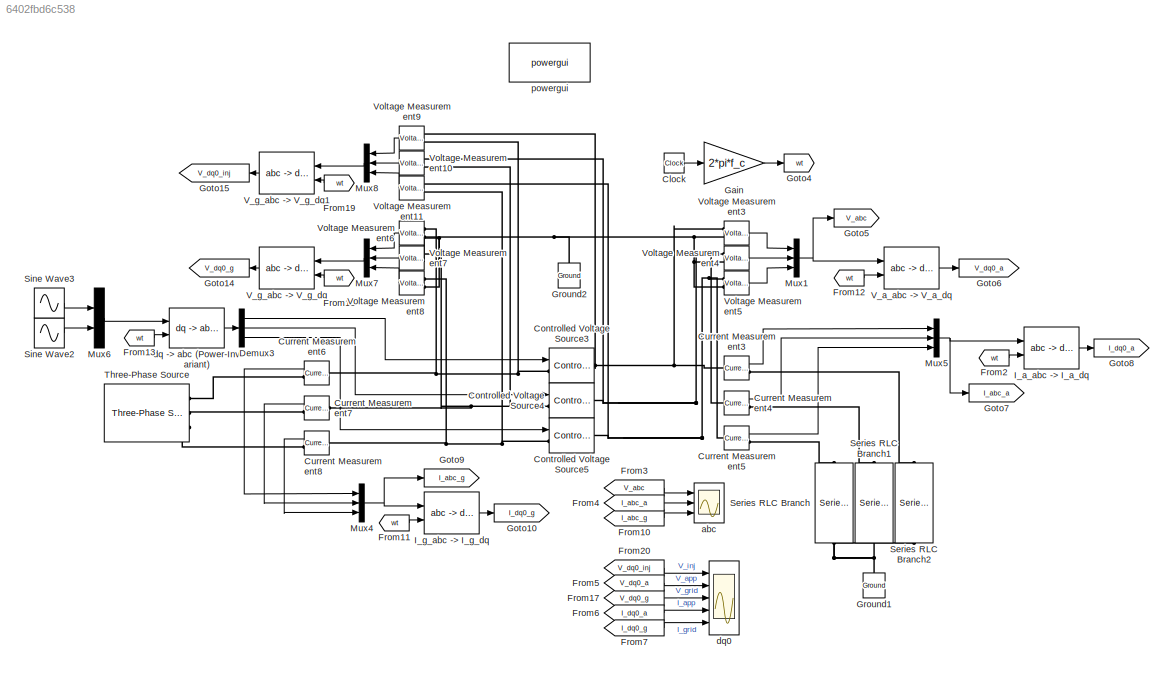
MODEL slx_6402fbd6c538
KIND model
CONFIG AbsTol = auto
CONFIG EnableMultiTasking = off
CONFIG FixedStep = tStep
CONFIG MaxStep = auto
CONFIG MinStep = auto
CONFIG RelTol = 1e-3
CONFIG SampleTimeConstraint = Unconstrained
CONFIG SolverName = FixedStepAuto
CONFIG StartTime = 0.0
CONFIG StopTime = tStop
BLOCK [Clock] Clock
BLOCK [Reference] Controlled Voltage Source3  REF=powerlib/Electrical
Sources/Controlled Voltage Source
  Ports = [1, 0, 0, 0, 0, 1, 1]
  SourceBlock = powerlib/Electrical\nSources/Controlled Voltage Source
  SourceProductBaseCode = PS
  SourceType = Controlled Voltage Source
BLOCK [Reference] Controlled Voltage Source4  REF=powerlib/Electrical
Sources/Controlled Voltage Source
  Ports = [1, 0, 0, 0, 0, 1, 1]
  SourceBlock = powerlib/Electrical\nSources/Controlled Voltage Source
  SourceProductBaseCode = PS
  SourceType = Controlled Voltage Source
BLOCK [Reference] Controlled Voltage Source5  REF=powerlib/Electrical
Sources/Controlled Voltage Source
  Ports = [1, 0, 0, 0, 0, 1, 1]
  SourceBlock = powerlib/Electrical\nSources/Controlled Voltage Source
  SourceProductBaseCode = PS
  SourceType = Controlled Voltage Source
BLOCK [Reference] Current Measurement3  REF=powerlib/Measurements/Current Measurement
  Ports = [0, 1, 0, 0, 0, 1, 1]
  SourceBlock = powerlib/Measurements/Current Measurement
  SourceProductBaseCode = PS
  SourceType = Current Measurement
  UserDataPersistent = on
BLOCK [Reference] Current Measurement4  REF=powerlib/Measurements/Current Measurement
  Ports = [0, 1, 0, 0, 0, 1, 1]
  SourceBlock = powerlib/Measurements/Current Measurement
  SourceProductBaseCode = PS
  SourceType = Current Measurement
  UserDataPersistent = on
BLOCK [Reference] Current Measurement5  REF=powerlib/Measurements/Current Measurement
  Ports = [0, 1, 0, 0, 0, 1, 1]
  SourceBlock = powerlib/Measurements/Current Measurement
  SourceProductBaseCode = PS
  SourceType = Current Measurement
  UserDataPersistent = on
BLOCK [Reference] Current Measurement6  REF=powerlib/Measurements/Current Measurement
  Ports = [0, 1, 0, 0, 0, 1, 1]
  SourceBlock = powerlib/Measurements/Current Measurement
  SourceProductBaseCode = PS
  SourceType = Current Measurement
  UserDataPersistent = on
BLOCK [Reference] Current Measurement7  REF=powerlib/Measurements/Current Measurement
  Ports = [0, 1, 0, 0, 0, 1, 1]
  SourceBlock = powerlib/Measurements/Current Measurement
  SourceProductBaseCode = PS
  SourceType = Current Measurement
  UserDataPersistent = on
BLOCK [Reference] Current Measurement8  REF=powerlib/Measurements/Current Measurement
  Ports = [0, 1, 0, 0, 0, 1, 1]
  SourceBlock = powerlib/Measurements/Current Measurement
  SourceProductBaseCode = PS
  SourceType = Current Measurement
  UserDataPersistent = on
BLOCK [Demux] Demux3
  Outputs = 3
  Ports = [1, 3]
BLOCK [From] From10
  GotoTag = I_abc_g
BLOCK [From] From11
  GotoTag = wt
BLOCK [From] From12
  GotoTag = wt
BLOCK [From] From13
  GotoTag = wt
BLOCK [From] From17
  GotoTag = V_dq0_g
BLOCK [From] From18
  GotoTag = wt
BLOCK [From] From19
  GotoTag = wt
BLOCK [From] From2
  GotoTag = wt
BLOCK [From] From20
  GotoTag = V_dq0_inj
BLOCK [From] From3
  GotoTag = V_abc
BLOCK [From] From4
  GotoTag = I_abc_a
BLOCK [From] From5
  GotoTag = V_dq0_a
BLOCK [From] From6
  GotoTag = I_dq0_a
BLOCK [From] From7
  GotoTag = I_dq0_g
BLOCK [Gain] Gain
  Gain = 2*pi*f_c
BLOCK [Goto] Goto10
  GotoTag = I_dq0_g
BLOCK [Goto] Goto14
  GotoTag = V_dq0_g
BLOCK [Goto] Goto15
  GotoTag = V_dq0_inj
BLOCK [Goto] Goto4
  GotoTag = wt
BLOCK [Goto] Goto5
  GotoTag = V_abc
BLOCK [Goto] Goto6
  GotoTag = V_dq0_a
BLOCK [Goto] Goto7
  GotoTag = I_abc_a
BLOCK [Goto] Goto8
  GotoTag = I_dq0_a
BLOCK [Goto] Goto9
  GotoTag = I_abc_g
BLOCK [Reference] Ground1  REF=powerlib/Elements/Ground
  NameLocation = right
  Ports = [0, 0, 0, 0, 0, 1]
  SourceBlock = powerlib/Elements/Ground
  SourceProductBaseCode = PS
  SourceType = Ground
BLOCK [Reference] Ground2  REF=powerlib/Elements/Ground
  NameLocation = right
  Ports = [0, 0, 0, 0, 0, 1]
  SourceBlock = powerlib/Elements/Ground
  SourceProductBaseCode = PS
  SourceType = Ground
BLOCK [Reference] I_a_abc -> I_a_dq  REF=SimplusGT/Grid-Following
Voltage-Source Inverter
(dq-Frame System Object)/abc -> dq
(Power-Invariant)2
  Ports = [2, 1]
  SourceBlock = SimplusGT/Grid-Following\nVoltage-Source Inverter\n(dq-Frame System Object)/abc -> dq\n(Power-Invariant)2
BLOCK [Reference] I_g_abc -> I_g_dq  REF=SimplusGT/Grid-Following
Voltage-Source Inverter
(dq-Frame System Object)/abc -> dq
(Power-Invariant)2
  Ports = [2, 1]
  SourceBlock = SimplusGT/Grid-Following\nVoltage-Source Inverter\n(dq-Frame System Object)/abc -> dq\n(Power-Invariant)2
BLOCK [Mux] Mux1
  DisplayOption = bar
  Inputs = 3
  Ports = [3, 1]
BLOCK [Mux] Mux4
  DisplayOption = bar
  Inputs = 3
  Ports = [3, 1]
BLOCK [Mux] Mux5
  DisplayOption = bar
  Inputs = 3
  Ports = [3, 1]
BLOCK [Mux] Mux6
  DisplayOption = bar
  Inputs = 2
  NameLocation = top
  Ports = [2, 1]
BLOCK [Mux] Mux7
  DisplayOption = bar
  Inputs = 3
  Ports = [3, 1]
BLOCK [Mux] Mux8
  DisplayOption = bar
  Inputs = 3
  Ports = [3, 1]
BLOCK [Reference] Series RLC Branch  REF=powerlib/Elements/Series RLC Branch
  NameLocation = left
  Ports = [0, 0, 0, 0, 0, 1, 1]
  SourceBlock = powerlib/Elements/Series RLC Branch
  SourceProductBaseCode = PS
  SourceType = Series RLC Branch
BLOCK [Reference] Series RLC Branch1  REF=powerlib/Elements/Series RLC Branch
  NameLocation = left
  Ports = [0, 0, 0, 0, 0, 1, 1]
  SourceBlock = powerlib/Elements/Series RLC Branch
  SourceProductBaseCode = PS
  SourceType = Series RLC Branch
BLOCK [Reference] Series RLC Branch2  REF=powerlib/Elements/Series RLC Branch
  NameLocation = left
  Ports = [0, 0, 0, 0, 0, 1, 1]
  SourceBlock = powerlib/Elements/Series RLC Branch
  SourceProductBaseCode = PS
  SourceType = Series RLC Branch
BLOCK [Sin] Sine Wave2
  Amplitude = amp(1,2)
  Frequency = 2*pi*freq(1,2)
  NameLocation = top
  Phase = phase(1,2)
  Ports = [0, 1]
  SampleTime = 0
BLOCK [Sin] Sine Wave3
  Amplitude = amp(1,1)
  Frequency = 2*pi*freq(1,1)
  NameLocation = top
  Phase = phase(1,1)
  Ports = [0, 1]
  SampleTime = 0
BLOCK [Reference] Three-Phase Source  REF=powerlib/Electrical
Sources/Three-Phase Source
  Ports = [0, 0, 0, 0, 0, 0, 3]
  SourceBlock = powerlib/Electrical\nSources/Three-Phase Source
  SourceProductBaseCode = PS
  SourceType = Three-Phase Source
BLOCK [Reference] V_a_abc -> V_a_dq  REF=SimplusGT/Grid-Following
Voltage-Source Inverter
(dq-Frame System Object)/abc -> dq
(Power-Invariant)2
  Ports = [2, 1]
  SourceBlock = SimplusGT/Grid-Following\nVoltage-Source Inverter\n(dq-Frame System Object)/abc -> dq\n(Power-Invariant)2
BLOCK [Reference] V_g_abc -> V_g_dq  REF=SimplusGT/Grid-Following
Voltage-Source Inverter
(dq-Frame System Object)/abc -> dq
(Power-Invariant)2
  Ports = [2, 1]
  SourceBlock = SimplusGT/Grid-Following\nVoltage-Source Inverter\n(dq-Frame System Object)/abc -> dq\n(Power-Invariant)2
BLOCK [Reference] V_g_abc -> V_g_dq1  REF=SimplusGT/Grid-Following
Voltage-Source Inverter
(dq-Frame System Object)/abc -> dq
(Power-Invariant)2
  Ports = [2, 1]
  SourceBlock = SimplusGT/Grid-Following\nVoltage-Source Inverter\n(dq-Frame System Object)/abc -> dq\n(Power-Invariant)2
BLOCK [Reference] Voltage Measurement10  REF=powerlib/Measurements/Voltage Measurement
  Ports = [0, 1, 0, 0, 0, 2]
  SourceBlock = powerlib/Measurements/Voltage Measurement
  SourceProductBaseCode = PS
  SourceType = Voltage Measurement
  UserDataPersistent = on
BLOCK [Reference] Voltage Measurement11  REF=powerlib/Measurements/Voltage Measurement
  Ports = [0, 1, 0, 0, 0, 2]
  SourceBlock = powerlib/Measurements/Voltage Measurement
  SourceProductBaseCode = PS
  SourceType = Voltage Measurement
  UserDataPersistent = on
BLOCK [Reference] Voltage Measurement3  REF=powerlib/Measurements/Voltage Measurement
  Ports = [0, 1, 0, 0, 0, 2]
  SourceBlock = powerlib/Measurements/Voltage Measurement
  SourceProductBaseCode = PS
  SourceType = Voltage Measurement
  UserDataPersistent = on
BLOCK [Reference] Voltage Measurement4  REF=powerlib/Measurements/Voltage Measurement
  Ports = [0, 1, 0, 0, 0, 2]
  SourceBlock = powerlib/Measurements/Voltage Measurement
  SourceProductBaseCode = PS
  SourceType = Voltage Measurement
  UserDataPersistent = on
BLOCK [Reference] Voltage Measurement5  REF=powerlib/Measurements/Voltage Measurement
  Ports = [0, 1, 0, 0, 0, 2]
  SourceBlock = powerlib/Measurements/Voltage Measurement
  SourceProductBaseCode = PS
  SourceType = Voltage Measurement
  UserDataPersistent = on
BLOCK [Reference] Voltage Measurement6  REF=powerlib/Measurements/Voltage Measurement
  Ports = [0, 1, 0, 0, 0, 2]
  SourceBlock = powerlib/Measurements/Voltage Measurement
  SourceProductBaseCode = PS
  SourceType = Voltage Measurement
  UserDataPersistent = on
BLOCK [Reference] Voltage Measurement7  REF=powerlib/Measurements/Voltage Measurement
  Ports = [0, 1, 0, 0, 0, 2]
  SourceBlock = powerlib/Measurements/Voltage Measurement
  SourceProductBaseCode = PS
  SourceType = Voltage Measurement
  UserDataPersistent = on
BLOCK [Reference] Voltage Measurement8  REF=powerlib/Measurements/Voltage Measurement
  Ports = [0, 1, 0, 0, 0, 2]
  SourceBlock = powerlib/Measurements/Voltage Measurement
  SourceProductBaseCode = PS
  SourceType = Voltage Measurement
  UserDataPersistent = on
BLOCK [Reference] Voltage Measurement9  REF=powerlib/Measurements/Voltage Measurement
  Ports = [0, 1, 0, 0, 0, 2]
  SourceBlock = powerlib/Measurements/Voltage Measurement
  SourceProductBaseCode = PS
  SourceType = Voltage Measurement
  UserDataPersistent = on
BLOCK [Scope] abc
  Floating = off
  NumInputPorts = 3
  Ports = [3]
  ScopeSpecificationString = Simulink.scopes.TimeScopeBlockCfg('CurrentConfiguration', extmgr.ConfigurationSet(extmgr.Configuration('Core','General UI',true),extmgr.Configuration('Core','Source UI',true),extmgr.Configuration('Sources','WiredSimulink',true,'DataLoggingVariableName','ScopeData1'),extmgr.Configuration('Visuals','Time Domain',true,'SerializedDisplays',{struct('MinYLimReal','-2138.39059','MaxYLimReal','2138.39059'...<+2941ch>
BLOCK [Reference] dq -> abc (Power-Invariant)  REF=SimplusGT/dq -> abc
(Power-Invariant)
  Ports = [2, 1]
  SourceBlock = SimplusGT/dq -> abc\n(Power-Invariant)
BLOCK [Scope] dq0
  Floating = off
  NumInputPorts = 5
  Ports = [5]
  ScopeSpecificationString = Simulink.scopes.TimeScopeBlockCfg('CurrentConfiguration', extmgr.ConfigurationSet(extmgr.Configuration('Core','General UI',true),extmgr.Configuration('Core','Source UI',true),extmgr.Configuration('Sources','WiredSimulink',true,'DataLoggingVariableName','dq0','DataLogging',true),extmgr.Configuration('Visuals','Time Domain',true,'SerializedDisplays',{struct('MinYLimReal','-125.00000','MaxYLimReal','...<+4805ch>
BLOCK [Reference] powergui  REF=powerlib/powergui
  Ports = []
  Priority = 1
  SourceBlock = powerlib/powergui
  SourceProductBaseCode = PS
  SourceType = PSB option menu block
LINE Clock:1 -> Gain:1
LINE Current Measurement3:1 -> Mux5:1
LINE Current Measurement4:1 -> Mux5:2
LINE Current Measurement5:1 -> Mux5:3
LINE Current Measurement6:1 -> Mux4:1
LINE Current Measurement7:1 -> Mux4:2
LINE Current Measurement8:1 -> Mux4:3
LINE Demux3:1 -> Controlled Voltage Source3:1
LINE Demux3:2 -> Controlled Voltage Source4:1
LINE Demux3:3 -> Controlled Voltage Source5:1
LINE From10:1 -> abc:3
LINE From11:1 -> I_g_abc -> I_g_dq:2
LINE From12:1 -> V_a_abc -> V_a_dq:2
LINE From13:1 -> dq -> abc (Power-Invariant):2
LINE From17:1 -> dq0:3
LINE From18:1 -> V_g_abc -> V_g_dq:2
LINE From19:1 -> V_g_abc -> V_g_dq1:2
LINE From20:1 -> dq0:1
LINE From2:1 -> I_a_abc -> I_a_dq:2
LINE From3:1 -> abc:1
LINE From4:1 -> abc:2
LINE From5:1 -> dq0:2
LINE From6:1 -> dq0:4
LINE From7:1 -> dq0:5
LINE Gain:1 -> Goto4:1
LINE I_a_abc -> I_a_dq:1 -> Goto8:1
LINE I_g_abc -> I_g_dq:1 -> Goto10:1
NET Mux1:1 -> Goto5:1, V_a_abc -> V_a_dq:1
NET Mux4:1 -> Goto9:1, I_g_abc -> I_g_dq:1
NET Mux5:1 -> Goto7:1, I_a_abc -> I_a_dq:1
LINE Mux6:1 -> dq -> abc (Power-Invariant):1
LINE Mux7:1 -> V_g_abc -> V_g_dq:1
LINE Mux8:1 -> V_g_abc -> V_g_dq1:1
LINE Sine Wave2:1 -> Mux6:2
LINE Sine Wave3:1 -> Mux6:1
LINE V_a_abc -> V_a_dq:1 -> Goto6:1
LINE V_g_abc -> V_g_dq1:1 -> Goto15:1
LINE V_g_abc -> V_g_dq:1 -> Goto14:1
LINE Voltage Measurement10:1 -> Mux8:2
LINE Voltage Measurement11:1 -> Mux8:3
LINE Voltage Measurement3:1 -> Mux1:1
LINE Voltage Measurement4:1 -> Mux1:2
LINE Voltage Measurement5:1 -> Mux1:3
LINE Voltage Measurement6:1 -> Mux7:1
LINE Voltage Measurement7:1 -> Mux7:2
LINE Voltage Measurement8:1 -> Mux7:3
LINE Voltage Measurement9:1 -> Mux8:1
LINE dq -> abc (Power-Invariant):1 -> Demux3:1
PNET net1: Controlled Voltage Source3:LConn1 -- Current Measurement6:LConn1 -- Voltage Measurement6:LConn1 -- Voltage Measurement9:LConn2
PNET net2: Controlled Voltage Source3:RConn1 -- Current Measurement3:LConn1 -- Voltage Measurement3:LConn1 -- Voltage Measurement9:LConn1
PNET net3: Controlled Voltage Source4:LConn1 -- Current Measurement7:LConn1 -- Voltage Measurement10:LConn2 -- Voltage Measurement7:LConn1
PNET net4: Controlled Voltage Source4:RConn1 -- Current Measurement4:LConn1 -- Voltage Measurement10:LConn1 -- Voltage Measurement4:LConn1
PNET net5: Controlled Voltage Source5:LConn1 -- Current Measurement8:LConn1 -- Voltage Measurement11:LConn2 -- Voltage Measurement8:LConn1
PNET net6: Controlled Voltage Source5:RConn1 -- Current Measurement5:LConn1 -- Voltage Measurement11:LConn1 -- Voltage Measurement5:LConn1
PLINE Current Measurement3:RConn1 -- Series RLC Branch2:LConn1
PLINE Current Measurement4:RConn1 -- Series RLC Branch1:LConn1
PLINE Current Measurement5:RConn1 -- Series RLC Branch:LConn1
PLINE Current Measurement6:RConn1 -- Three-Phase Source:RConn1
PLINE Current Measurement7:RConn1 -- Three-Phase Source:RConn2
PLINE Current Measurement8:RConn1 -- Three-Phase Source:RConn3
PNET net7: Ground1:LConn1 -- Series RLC Branch1:RConn1 -- Series RLC Branch2:RConn1 -- Series RLC Branch:RConn1
PNET net8: Ground2:LConn1 -- Voltage Measurement3:LConn2 -- Voltage Measurement4:LConn2 -- Voltage Measurement5:LConn2 -- Voltage Measurement6:LConn2 -- Voltage Measurement7:LConn2 -- Voltage Measurement8:LConn2
note: NET lines group one-source signal fan-out (src -> all destinations, sorted); 1:1 wires keep LINE; PNET lines group multi-terminal physical nets as a canonical sorted terminal list (undirected conserving connections); 2-terminal nets keep the pairwise PLINE form
